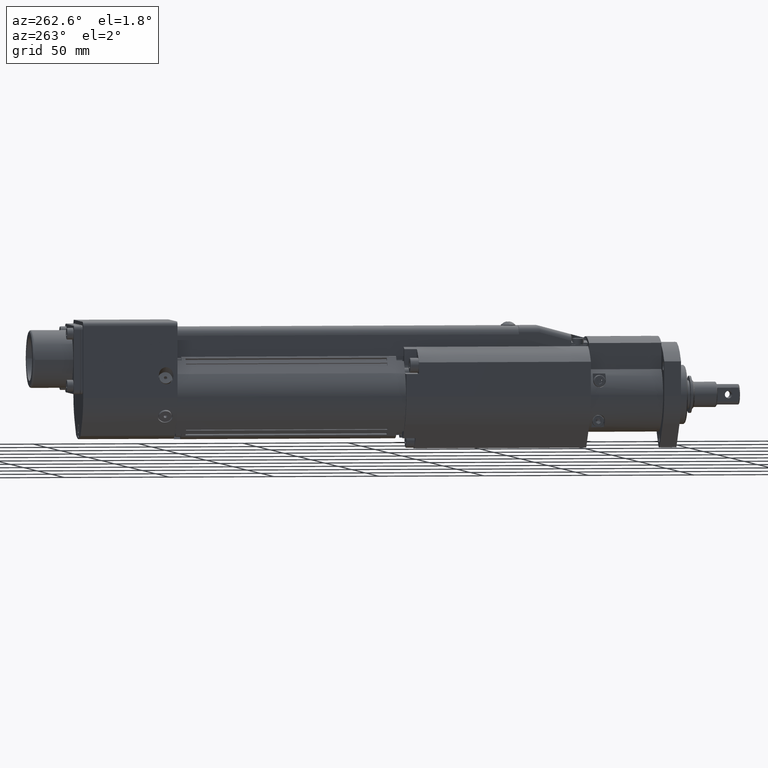
[diagram: clean part render]
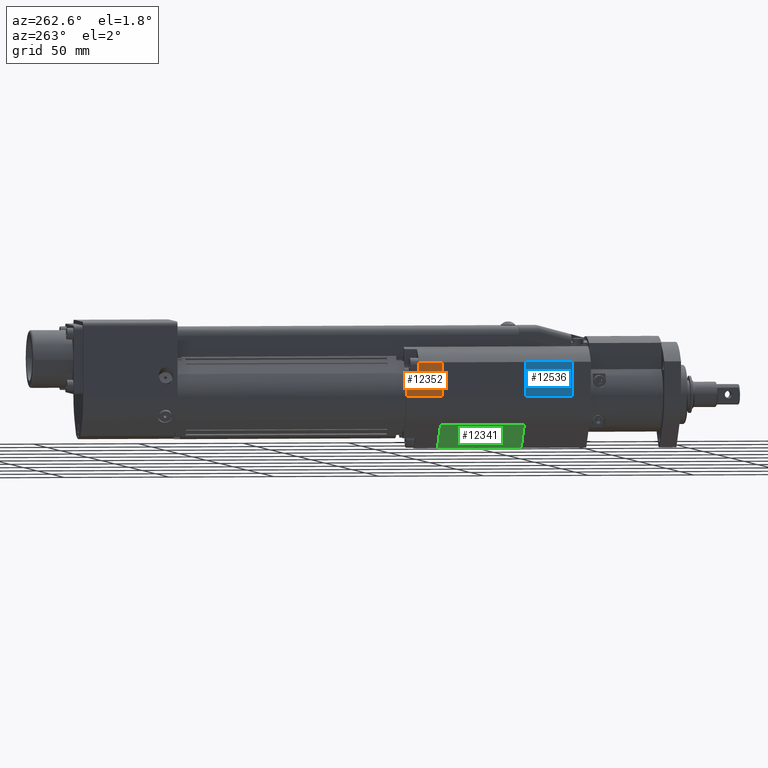
[diagram: same view with three faces highlighted in distinct colors, each labeled with its STEP entity id]
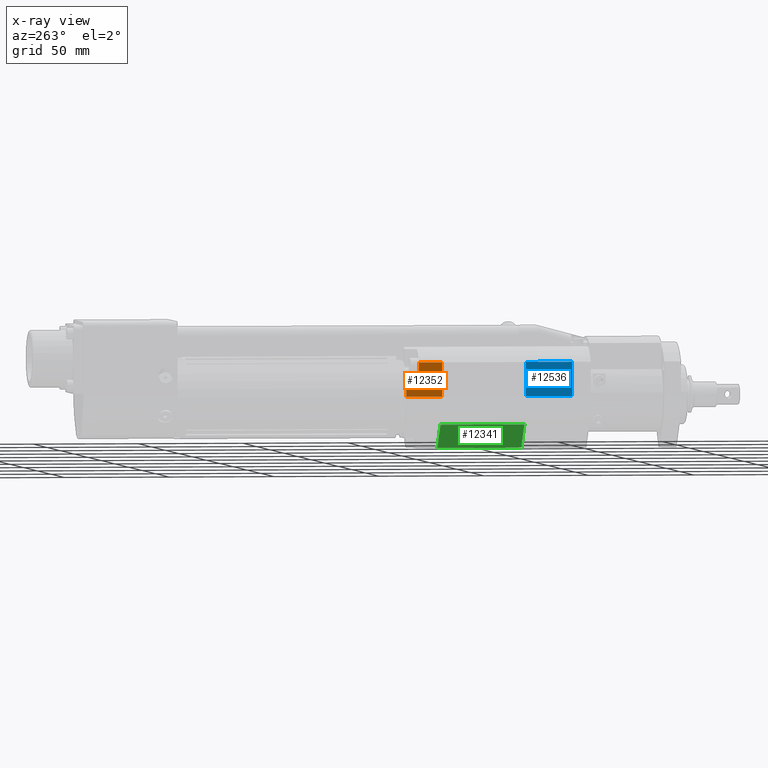
[diagram: x-ray of the same camera — body ghosted, the three highlighted faces saturated]
A machine part, auxiliary view with three faces highlighted in distinct colors.
The next image is the same camera in x-ray (body ghosted, the three faces saturated) — at least one of them is partly hidden behind the body in this view.
Their STEP definitions:

[orange] entity #12352 — the highlighted planar face has unit normal (-1, 0, -0).
#746=FACE_OUTER_BOUND('',#1475,.T.);
#1475=EDGE_LOOP('',(#8666,#8667,#8668,#8669,#8670,#8671));
#2601=LINE('',#17818,#3657);
#2765=LINE('',#18599,#3821);
#2946=LINE('',#19880,#4002);
#2956=LINE('',#19907,#4012);
#2966=LINE('',#19927,#4022);
#2967=LINE('',#19928,#4023);
#3657=VECTOR('',#14297,10.);
#3821=VECTOR('',#14735,10.);
#4002=VECTOR('',#15324,10.);
#4012=VECTOR('',#15352,10.);
#4022=VECTOR('',#15372,10.);
#4023=VECTOR('',#15373,10.);
#4763=VERTEX_POINT('',#17815);
#4764=VERTEX_POINT('',#17817);
#4976=VERTEX_POINT('',#18596);
#4977=VERTEX_POINT('',#18598);
#5172=VERTEX_POINT('',#19870);
#5175=VERTEX_POINT('',#19878);
#5896=EDGE_CURVE('',#4764,#4763,#2601,.T.);
#6168=EDGE_CURVE('',#4977,#4976,#2765,.T.);
#6477=EDGE_CURVE('',#5172,#5175,#2946,.T.);
#6491=EDGE_CURVE('',#4763,#5172,#2956,.T.);
#6502=EDGE_CURVE('',#4976,#4764,#2966,.T.);
#6503=EDGE_CURVE('',#4977,#5175,#2967,.T.);
#8666=ORIENTED_EDGE('',*,*,#6502,.T.);
#8667=ORIENTED_EDGE('',*,*,#5896,.T.);
#8668=ORIENTED_EDGE('',*,*,#6491,.T.);
#8669=ORIENTED_EDGE('',*,*,#6477,.T.);
#8670=ORIENTED_EDGE('',*,*,#6503,.F.);
#8671=ORIENTED_EDGE('',*,*,#6168,.T.);
#11141=PLANE('',#13298);
#12352=ADVANCED_FACE('',(#746),#11141,.T.);
#13298=AXIS2_PLACEMENT_3D('',#19926,#15370,#15371);
#14297=DIRECTION('',(2.80543200783601E-15,-2.84049013948923E-16,-1.));
#14735=DIRECTION('',(2.80543200783601E-15,-2.84049013948923E-16,-1.));
#15324=DIRECTION('',(-2.22044604925031E-16,2.84049013948922E-16,1.));
#15352=DIRECTION('',(-7.21644966006352E-16,-1.,2.84049013948921E-16));
#15370=DIRECTION('center_axis',(-1.,7.21644966006352E-16,-2.80543200783601E-15));
#15371=DIRECTION('ref_axis',(2.80543200783601E-15,-2.84049013948923E-16,
-1.));
#15372=DIRECTION('',(7.21644966006352E-16,1.,-2.84049013948921E-16));
#15373=DIRECTION('',(-7.21644966006352E-16,-1.,2.84049013948921E-16));
#17815=CARTESIAN_POINT('',(-19.,57.,6.30121984940936E-14));
#17817=CARTESIAN_POINT('',(-19.,57.,10.8000000000001));
#17818=CARTESIAN_POINT('',(-19.0000000000001,57.,16.248076809272));
#18596=CARTESIAN_POINT('',(-19.,51.,10.8000000000001));
#18598=CARTESIAN_POINT('',(-19.0000000000001,51.,16.248076809272));
#18599=CARTESIAN_POINT('',(-19.0000000000001,51.,16.0340800820399));
#19870=CARTESIAN_POINT('',(-19.,40.,-1.55808080515325E-14));
#19878=CARTESIAN_POINT('',(-19.,40.,16.2480768092719));
#19880=CARTESIAN_POINT('',(-19.,40.,-1.55808080515325E-14));
#19907=CARTESIAN_POINT('',(-19.,57.,6.30121984940936E-14));
#19926=CARTESIAN_POINT('Origin',(-19.0000000000001,57.,16.248076809272));
#19927=CARTESIAN_POINT('',(-19.,57.,10.8000000000001));
#19928=CARTESIAN_POINT('',(-19.0000000000001,57.,16.248076809272));

[blue] entity #12536 — the highlighted planar face has unit normal (1, -0, 0).
#930=FACE_OUTER_BOUND('',#1671,.T.);
#1671=EDGE_LOOP('',(#9525,#9526,#9527,#9528));
#2944=LINE('',#19877,#4000);
#3226=LINE('',#20675,#4282);
#3236=LINE('',#20704,#4292);
#3238=LINE('',#20708,#4294);
#4000=VECTOR('',#15322,10.);
#4282=VECTOR('',#16126,10.);
#4292=VECTOR('',#16158,10.);
#4294=VECTOR('',#16164,10.);
#5171=VERTEX_POINT('',#19868);
#5174=VERTEX_POINT('',#19876);
#5357=VERTEX_POINT('',#20674);
#5365=VERTEX_POINT('',#20702);
#6475=EDGE_CURVE('',#5171,#5174,#2944,.T.);
#6841=EDGE_CURVE('',#5174,#5357,#3226,.T.);
#6856=EDGE_CURVE('',#5365,#5171,#3236,.T.);
#6858=EDGE_CURVE('',#5357,#5365,#3238,.T.);
#9525=ORIENTED_EDGE('',*,*,#6475,.F.);
#9526=ORIENTED_EDGE('',*,*,#6856,.F.);
#9527=ORIENTED_EDGE('',*,*,#6858,.F.);
#9528=ORIENTED_EDGE('',*,*,#6841,.F.);
#11267=PLANE('',#13558);
#12536=ADVANCED_FACE('',(#930),#11267,.F.);
#13558=AXIS2_PLACEMENT_3D('',#20707,#16162,#16163);
#15322=DIRECTION('',(-2.22044604925031E-16,2.84049013948922E-16,1.));
#16126=DIRECTION('',(-7.21644966006352E-16,-1.,2.84049013948922E-16));
#16158=DIRECTION('',(7.21644966006352E-16,1.,-2.84049013948922E-16));
#16162=DIRECTION('center_axis',(1.,-7.21644966006352E-16,4.55863693402444E-33));
#16163=DIRECTION('ref_axis',(-2.00423904081283E-31,-2.84049013948922E-16,
-1.));
#16164=DIRECTION('',(-2.00423904081283E-31,-2.84049013948922E-16,-1.));
#19868=CARTESIAN_POINT('',(-19.,1.37112543541207E-14,-4.2188474935756E-15));
#19876=CARTESIAN_POINT('',(-19.,1.83265045503607E-14,16.2480768092719));
#19877=CARTESIAN_POINT('',(-19.,1.37112543541207E-14,-4.2188474935756E-15));
#20674=CARTESIAN_POINT('',(-19.,-22.,16.2480768092719));
#20675=CARTESIAN_POINT('',(-19.,-11.,16.2480768092719));
#20702=CARTESIAN_POINT('',(-19.,-22.,6.24907830687628E-15));
#20704=CARTESIAN_POINT('',(-19.,-22.,6.24907830687628E-15));
#20707=CARTESIAN_POINT('Origin',(-19.,-22.,16.2480768092719));
#20708=CARTESIAN_POINT('',(-19.,-22.,8.12403840463597));

[green] entity #12341 — the highlighted planar face has unit normal (-0.7071, 0, -0.7071).
#735=FACE_OUTER_BOUND('',#1464,.T.);
#1464=EDGE_LOOP('',(#8614,#8615,#8616,#8617));
#2939=LINE('',#19857,#3995);
#2940=LINE('',#19863,#3996);
#2941=LINE('',#19865,#3997);
#2942=LINE('',#19866,#3998);
#3995=VECTOR('',#15301,10.);
#3996=VECTOR('',#15308,10.);
#3997=VECTOR('',#15309,10.);
#3998=VECTOR('',#15310,10.);
#5166=VERTEX_POINT('',#19854);
#5167=VERTEX_POINT('',#19856);
#5169=VERTEX_POINT('',#19862);
#5170=VERTEX_POINT('',#19864);
#6465=EDGE_CURVE('',#5166,#5167,#2939,.T.);
#6468=EDGE_CURVE('',#5166,#5169,#2940,.T.);
#6469=EDGE_CURVE('',#5169,#5170,#2941,.T.);
#6470=EDGE_CURVE('',#5167,#5170,#2942,.T.);
#8614=ORIENTED_EDGE('',*,*,#6468,.T.);
#8615=ORIENTED_EDGE('',*,*,#6469,.T.);
#8616=ORIENTED_EDGE('',*,*,#6470,.F.);
#8617=ORIENTED_EDGE('',*,*,#6465,.F.);
#11136=PLANE('',#13279);
#12341=ADVANCED_FACE('',(#735),#11136,.T.);
#13279=AXIS2_PLACEMENT_3D('',#19861,#15306,#15307);
#15301=DIRECTION('',(7.21644966006352E-16,1.,-2.84049013948921E-16));
#15306=DIRECTION('center_axis',(-0.707106781186548,3.09427065119593E-16,
-0.707106781186548));
#15307=DIRECTION('ref_axis',(-0.707106781186548,7.11133033024862E-16,0.707106781186548));
#15308=DIRECTION('',(-0.707106781186548,7.11133033024862E-16,0.707106781186548));
#15309=DIRECTION('',(7.21644966006352E-16,1.,-2.84049013948921E-16));
#15310=DIRECTION('',(-0.707106781186548,7.11133033024862E-16,0.707106781186548));
#19854=CARTESIAN_POINT('',(-1.94590354946834,-5.6754299049262E-15,-24.9241541356205));
#19856=CARTESIAN_POINT('',(-1.94590354946831,40.,-24.9241541356205));
#19857=CARTESIAN_POINT('',(-1.94590354946834,-5.6754299049262E-15,-24.9241541356205));
#19861=CARTESIAN_POINT('Origin',(-1.94590354946834,-5.6754299049262E-15,
-24.9241541356205));
#19862=CARTESIAN_POINT('',(-13.4350288425444,5.87911423727226E-15,-13.4350288425444));
#19863=CARTESIAN_POINT('',(-1.94590354946834,-5.6754299049262E-15,-24.9241541356205));
#19864=CARTESIAN_POINT('',(-13.4350288425444,40.,-13.4350288425444));
#19865=CARTESIAN_POINT('',(-13.4350288425444,5.87911423727226E-15,-13.4350288425444));
#19866=CARTESIAN_POINT('',(-1.94590354946831,40.,-24.9241541356205));